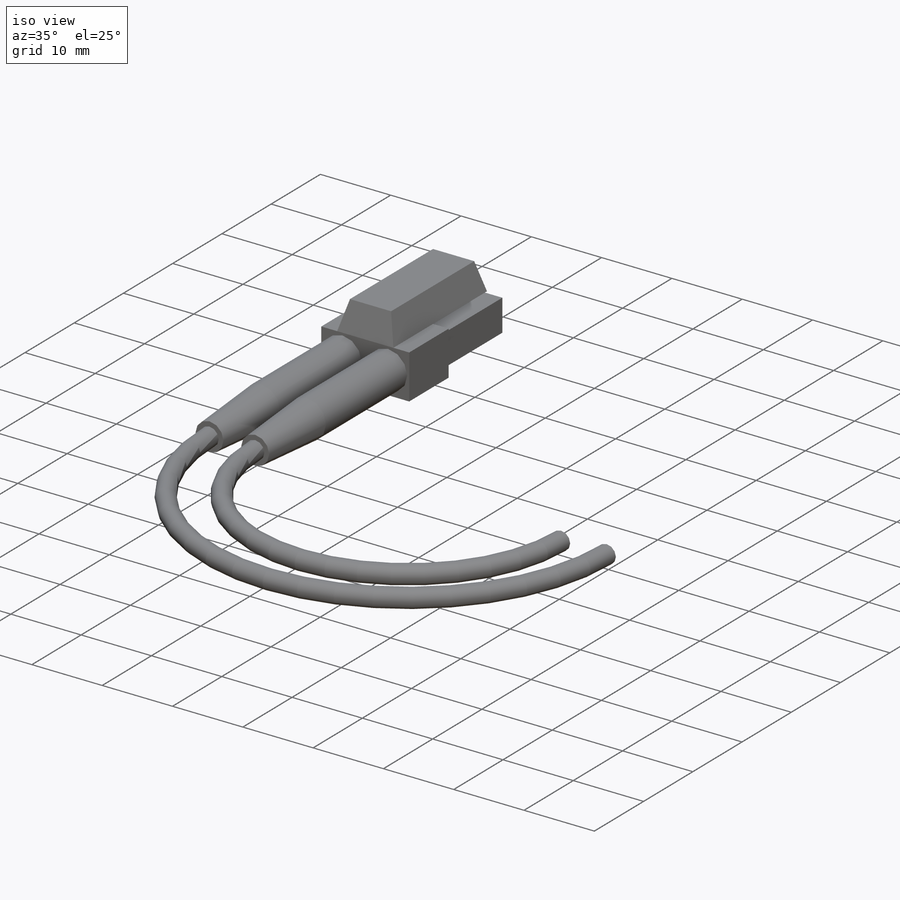
[diagram: iso view]
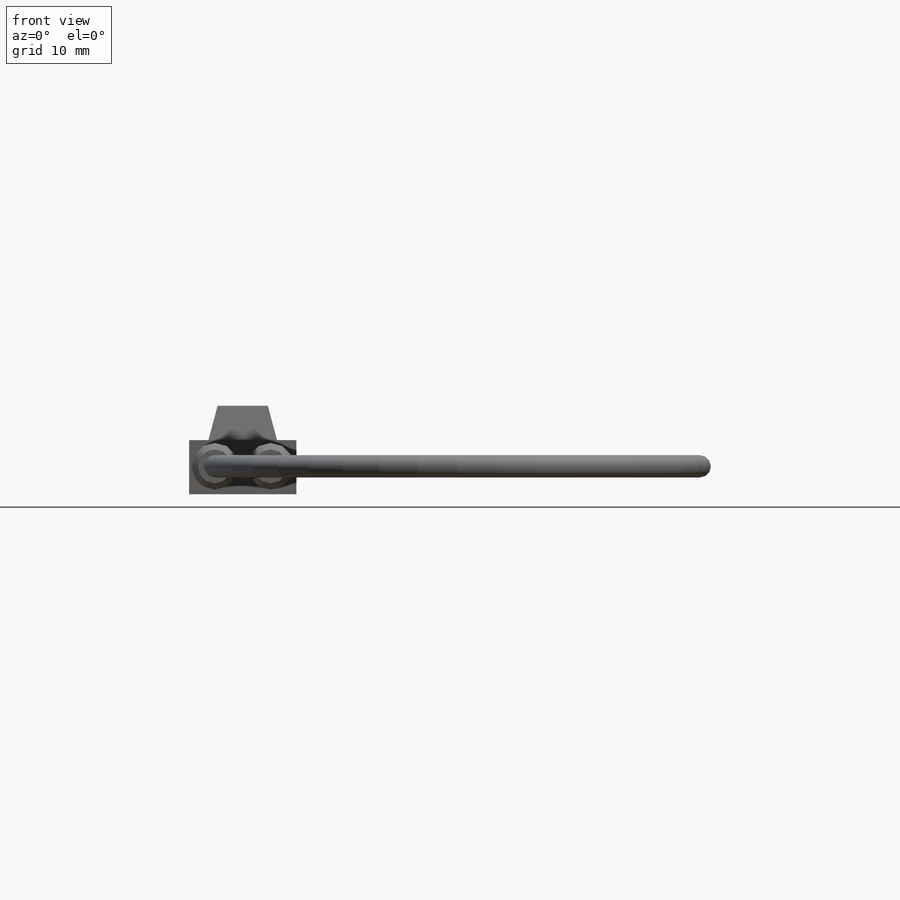
[diagram: front view]
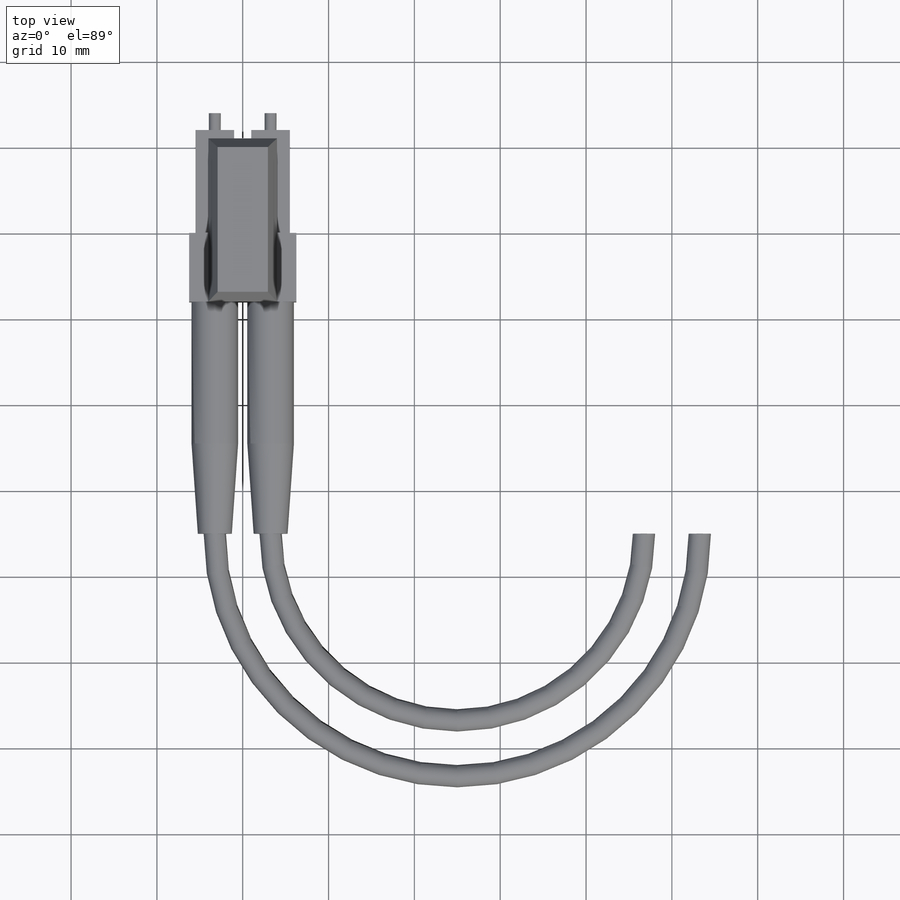
[diagram: top view]
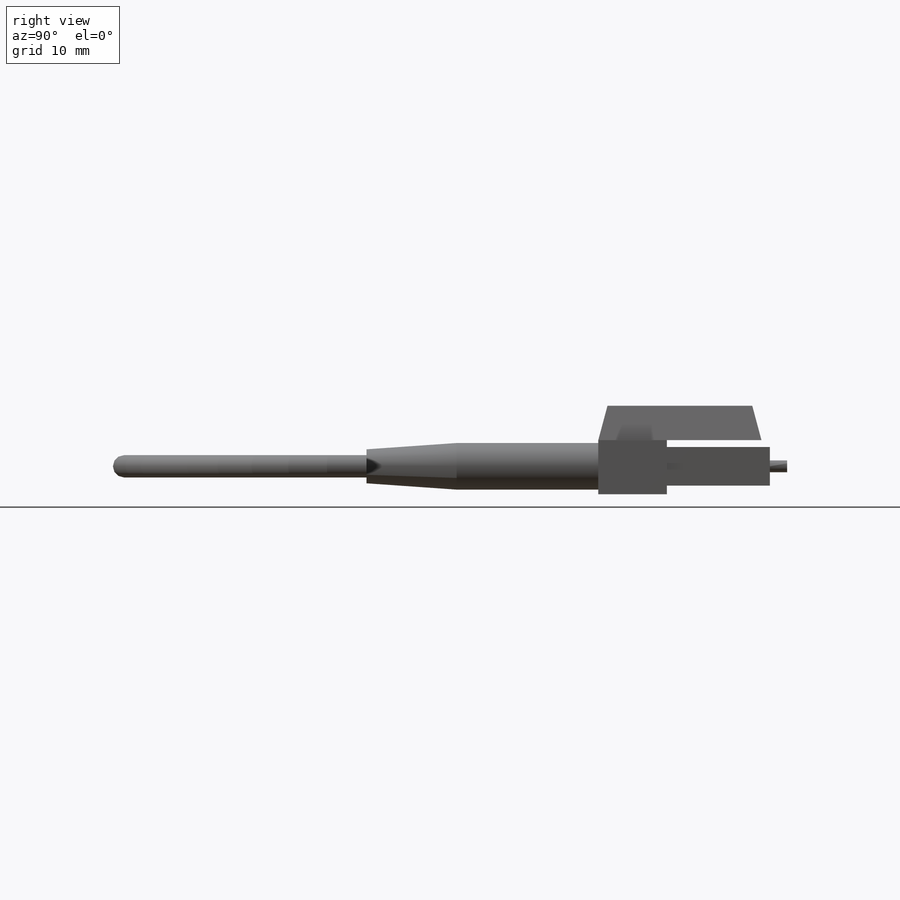
[diagram: right view]
SOLIDWORKS PART (.sldprt)
format: sldprt  version: not decoded by parser v0  size: 489,984 bytes
history: native  units: mm
features: sketch x12, extrude x8, sweep x2, material x1, plane x1 (+13 scaffold rows collapsed)
feature tree (37):
  scaffold x13  (default folders/planes/origin — collapsed)
  material  "Material <not specified>"
  sketch  "Sketch1"  dims[c1.D1=~27.884802mm c1.D2=~26.168814mm c2.D1=4.5mm c3.D1=2.0]
  extrude  "Boss-Extrude1"  Depth=12mm
  sketch  "Sketch2"  dims[c1.D1=~1.383496mm c2.D1=2.0]
  extrude  "Boss-Extrude2"  Depth=2mm
  sketch  "Sketch3"  dims[c1.D1=~6.126894mm c1.D2=~13.511477mm c2.D1=6.3mm]
  extrude  "Boss-Extrude3"  Depth=8mm
  sketch  "Sketch4"  dims[D1=~2.224784mm]
  extrude  "Boss-Extrude4"  Depth=16.5mm
  sketch  "Sketch5"  dims[D1=5.43mm]
  extrude  "Boss-Extrude5"  Depth=10.5mm
  sketch  "Sketch6"  dims[D1=~0.817417mm]
  extrude  "Boss-Extrude6"  Depth=23mm
  sketch  "Sketch7"  dims[D1=~0.75419mm]
  extrude  "Boss-Extrude7"  Depth=25mm
  sketch  "Sketch8"  dims[c1.D1=~2.357485mm c1.D2=~5.788798mm c2.D1=~1.364678mm c2.D2=~0.621113mm]
  extrude  "Boss-Extrude8"  Depth=4mm
  sketch  "profile1"  dims[D1=2.6mm]
  plane  "Plane1"
  sketch  "path1"  dims[D1=50.0mm]
  sweep  "Sweep1"
  sketch  "pathA"  dims[D1=50.0mm]
  sketch  "profileA"  dims[D1=2.6mm]
  sweep  "Sweep2"
decode coverage: 20 of 22 modeling features carry decoded parameters
note: ~ marks probable driven/reference dimensions
note: suppression state not decoded; provenance and decode notes live in map.json
